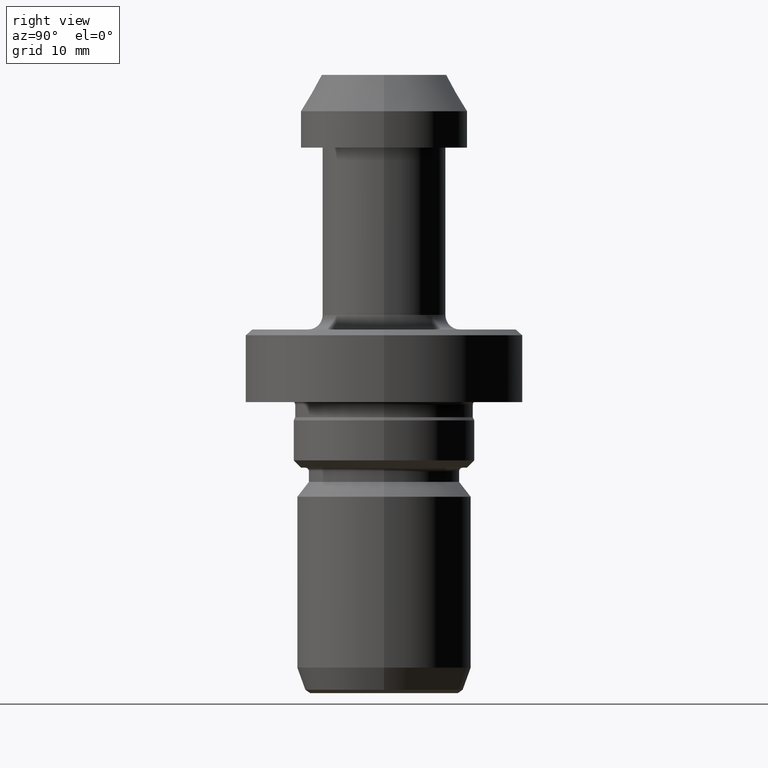
[diagram: clean part render]
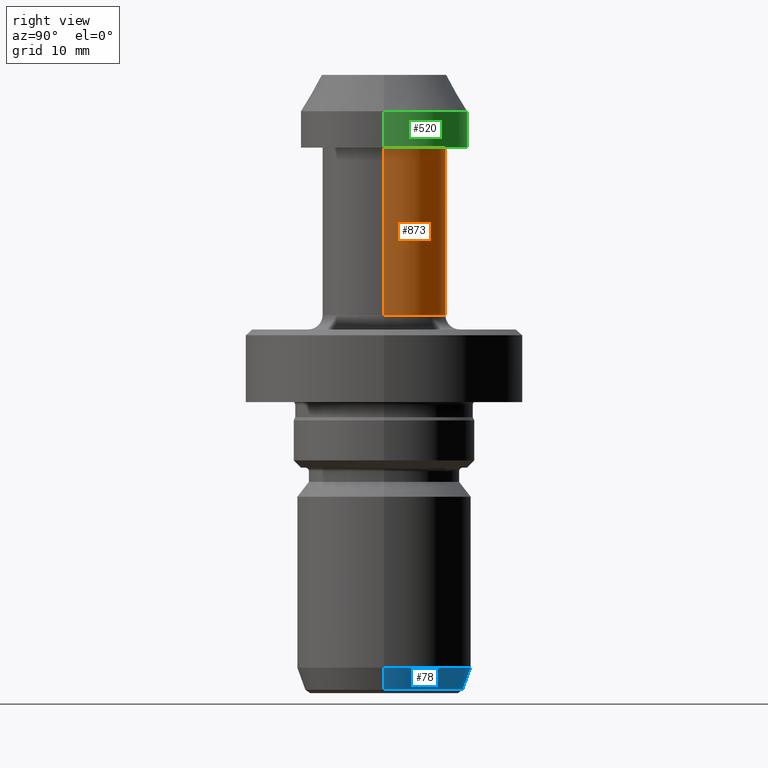
[diagram: same view with three faces highlighted in distinct colors, each labeled with its STEP entity id]
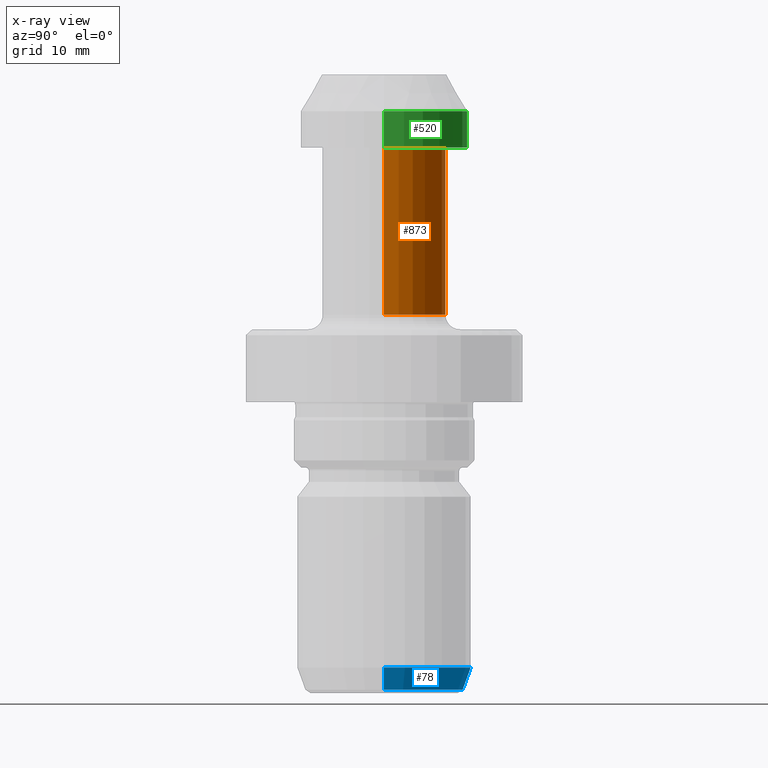
[diagram: x-ray of the same camera — body ghosted, the three highlighted faces saturated]
A machine part, right view with three faces highlighted in distinct colors.
The next image is the same camera in x-ray (body ghosted, the three faces saturated) — at least one of them is partly hidden behind the body in this view.
Their STEP definitions:

[orange] entity #873 — the highlighted cylindrical surface (partial cylindrical patch) has radius 8.5 mm, axis along (-0, -0, 1).
#37 = EDGE_CURVE ( 'NONE', #766, #458, #894, .T. ) ;
#75 = CARTESIAN_POINT ( 'NONE',  ( 0.0000000000000000000, 0.0000000000000000000, 0.0000000000000000000 ) ) ;
#82 = DIRECTION ( 'NONE',  ( 1.000000000000000000, 0.0000000000000000000, 0.0000000000000000000 ) ) ;
#113 = CARTESIAN_POINT ( 'NONE',  ( 8.500000000000000000, 0.0000000000000000000, 0.0000000000000000000 ) ) ;
#159 = DIRECTION ( 'NONE',  ( 1.000000000000000000, 0.0000000000000000000, 0.0000000000000000000 ) ) ;
#202 = EDGE_CURVE ( 'NONE', #718, #458, #733, .T. ) ;
#230 = CARTESIAN_POINT ( 'NONE',  ( 8.500000000000000000, 0.0000000000000000000, -10.00000000000000200 ) ) ;
#244 = ORIENTED_EDGE ( 'NONE', *, *, #512, .T. ) ;
#279 = ORIENTED_EDGE ( 'NONE', *, *, #202, .T. ) ;
#291 = DIRECTION ( 'NONE',  ( -0.0000000000000000000, -0.0000000000000000000, 1.000000000000000000 ) ) ;
#326 = CARTESIAN_POINT ( 'NONE',  ( -8.500000000000000000, 1.040949779275250100E-015, -10.00000000000000200 ) ) ;
#338 = VECTOR ( 'NONE', #1079, 1000.000000000000000 ) ;
#366 = FACE_OUTER_BOUND ( 'NONE', #622, .T. ) ;
#458 = VERTEX_POINT ( 'NONE', #326 ) ;
#496 = ORIENTED_EDGE ( 'NONE', *, *, #37, .F. ) ;
#512 = EDGE_CURVE ( 'NONE', #975, #718, #968, .T. ) ;
#600 = CARTESIAN_POINT ( 'NONE',  ( -8.500000000000001800, 1.163414459189985900E-015, -32.99999999999998600 ) ) ;
#622 = EDGE_LOOP ( 'NONE', ( #244, #279, #496, #747 ) ) ;
#627 = DIRECTION ( 'NONE',  ( -0.0000000000000000000, -0.0000000000000000000, 1.000000000000000000 ) ) ;
#677 = AXIS2_PLACEMENT_3D ( 'NONE', #1133, #627, #82 ) ;
#690 = DIRECTION ( 'NONE',  ( -0.0000000000000000000, -0.0000000000000000000, 1.000000000000000000 ) ) ;
#704 = EDGE_CURVE ( 'NONE', #975, #766, #884, .T. ) ;
#718 = VERTEX_POINT ( 'NONE', #600 ) ;
#733 = LINE ( 'NONE', #907, #1026 ) ;
#747 = ORIENTED_EDGE ( 'NONE', *, *, #704, .F. ) ;
#766 = VERTEX_POINT ( 'NONE', #230 ) ;
#777 = CYLINDRICAL_SURFACE ( 'NONE', #806, 8.500000000000000000 ) ;
#806 = AXIS2_PLACEMENT_3D ( 'NONE', #75, #690, #159 ) ;
#873 = ADVANCED_FACE ( 'NONE', ( #366 ), #777, .T. ) ;
#884 = LINE ( 'NONE', #113, #338 ) ;
#894 = CIRCLE ( 'NONE', #1143, 8.500000000000000000 ) ;
#902 = DIRECTION ( 'NONE',  ( 1.000000000000000000, 0.0000000000000000000, 0.0000000000000000000 ) ) ;
#907 = CARTESIAN_POINT ( 'NONE',  ( -8.500000000000000000, 1.040949779275250100E-015, 0.0000000000000000000 ) ) ;
#914 = CARTESIAN_POINT ( 'NONE',  ( 8.500000000000001800, 0.0000000000000000000, -32.99999999999998600 ) ) ;
#968 = CIRCLE ( 'NONE', #677, 8.500000000000001800 ) ;
#975 = VERTEX_POINT ( 'NONE', #914 ) ;
#1010 = DIRECTION ( 'NONE',  ( -0.0000000000000000000, -0.0000000000000000000, 1.000000000000000000 ) ) ;
#1026 = VECTOR ( 'NONE', #1010, 1000.000000000000000 ) ;
#1079 = DIRECTION ( 'NONE',  ( -0.0000000000000000000, -0.0000000000000000000, 1.000000000000000000 ) ) ;
#1092 = CARTESIAN_POINT ( 'NONE',  ( 0.0000000000000000000, 0.0000000000000000000, -10.00000000000000200 ) ) ;
#1133 = CARTESIAN_POINT ( 'NONE',  ( 0.0000000000000000000, 0.0000000000000000000, -32.99999999999998600 ) ) ;
#1143 = AXIS2_PLACEMENT_3D ( 'NONE', #1092, #291, #902 ) ;

[blue] entity #78 — the highlighted conical surface has half-angle 20 deg.
#4 = AXIS2_PLACEMENT_3D ( 'NONE', #604, #56, #682 ) ;
#6 = DIRECTION ( 'NONE',  ( -0.3420201433256695500, 4.188538737677001600E-017, 0.9396926207859082100 ) ) ;
#28 = DIRECTION ( 'NONE',  ( -0.0000000000000000000, -0.0000000000000000000, 1.000000000000000000 ) ) ;
#38 = VERTEX_POINT ( 'NONE', #117 ) ;
#42 = CARTESIAN_POINT ( 'NONE',  ( -10.89717019017340300, 1.334518459315981200E-015, -84.53000000000000100 ) ) ;
#56 = DIRECTION ( 'NONE',  ( -0.0000000000000000000, -0.0000000000000000000, 1.000000000000000000 ) ) ;
#78 = ADVANCED_FACE ( 'NONE', ( #630 ), #647, .T. ) ;
#117 = CARTESIAN_POINT ( 'NONE',  ( 12.00000000000000000, 0.0000000000000000000, -81.50000000000000000 ) ) ;
#118 = LINE ( 'NONE', #567, #1029 ) ;
#168 = CARTESIAN_POINT ( 'NONE',  ( 0.0000000000000000000, 0.0000000000000000000, -84.53000000000000100 ) ) ;
#188 = EDGE_CURVE ( 'NONE', #772, #38, #546, .T. ) ;
#200 = ORIENTED_EDGE ( 'NONE', *, *, #188, .F. ) ;
#224 = VERTEX_POINT ( 'NONE', #42 ) ;
#232 = CIRCLE ( 'NONE', #504, 12.00000000000000000 ) ;
#296 = EDGE_CURVE ( 'NONE', #772, #224, #1129, .T. ) ;
#301 = DIRECTION ( 'NONE',  ( 0.3420201433256695500, 0.0000000000000000000, 0.9396926207859082100 ) ) ;
#404 = EDGE_CURVE ( 'NONE', #224, #516, #118, .T. ) ;
#408 = ORIENTED_EDGE ( 'NONE', *, *, #404, .T. ) ;
#444 = CARTESIAN_POINT ( 'NONE',  ( 0.0000000000000000000, 0.0000000000000000000, -81.50000000000000000 ) ) ;
#490 = EDGE_CURVE ( 'NONE', #38, #516, #232, .T. ) ;
#504 = AXIS2_PLACEMENT_3D ( 'NONE', #444, #1045, #534 ) ;
#516 = VERTEX_POINT ( 'NONE', #788 ) ;
#534 = DIRECTION ( 'NONE',  ( 1.000000000000000000, 0.0000000000000000000, 0.0000000000000000000 ) ) ;
#546 = LINE ( 'NONE', #829, #963 ) ;
#567 = CARTESIAN_POINT ( 'NONE',  ( -10.89717019017340300, 1.334518459315981200E-015, -84.53000000000000100 ) ) ;
#604 = CARTESIAN_POINT ( 'NONE',  ( 0.0000000000000000000, 0.0000000000000000000, -84.53000000000000100 ) ) ;
#630 = FACE_OUTER_BOUND ( 'NONE', #1114, .T. ) ;
#647 = CONICAL_SURFACE ( 'NONE', #1024, 10.89717019017340300, 0.3490658503988667300 ) ;
#664 = DIRECTION ( 'NONE',  ( 1.000000000000000000, 0.0000000000000000000, 0.0000000000000000000 ) ) ;
#682 = DIRECTION ( 'NONE',  ( 1.000000000000000000, 0.0000000000000000000, 0.0000000000000000000 ) ) ;
#772 = VERTEX_POINT ( 'NONE', #850 ) ;
#788 = CARTESIAN_POINT ( 'NONE',  ( -12.00000000000000000, 1.469576158976823900E-015, -81.50000000000000000 ) ) ;
#829 = CARTESIAN_POINT ( 'NONE',  ( 10.89717019017340300, 0.0000000000000000000, -84.53000000000000100 ) ) ;
#850 = CARTESIAN_POINT ( 'NONE',  ( 10.89717019017340300, 0.0000000000000000000, -84.53000000000000100 ) ) ;
#896 = ORIENTED_EDGE ( 'NONE', *, *, #490, .F. ) ;
#963 = VECTOR ( 'NONE', #301, 999.9999999999998900 ) ;
#1024 = AXIS2_PLACEMENT_3D ( 'NONE', #168, #28, #664 ) ;
#1029 = VECTOR ( 'NONE', #6, 999.9999999999998900 ) ;
#1039 = ORIENTED_EDGE ( 'NONE', *, *, #296, .T. ) ;
#1045 = DIRECTION ( 'NONE',  ( -0.0000000000000000000, -0.0000000000000000000, 1.000000000000000000 ) ) ;
#1114 = EDGE_LOOP ( 'NONE', ( #1039, #408, #896, #200 ) ) ;
#1129 = CIRCLE ( 'NONE', #4, 10.89717019017340300 ) ;

[green] entity #520 — the highlighted cylindrical surface (partial cylindrical patch) has radius 11.5 mm, axis along (-0, -0, 1).
#71 = EDGE_CURVE ( 'NONE', #990, #216, #1080, .T. ) ;
#91 = EDGE_CURVE ( 'NONE', #510, #266, #162, .T. ) ;
#160 = ORIENTED_EDGE ( 'NONE', *, *, #71, .T. ) ;
#162 = LINE ( 'NONE', #857, #1074 ) ;
#164 = DIRECTION ( 'NONE',  ( -0.0000000000000000000, -0.0000000000000000000, 1.000000000000000000 ) ) ;
#216 = VERTEX_POINT ( 'NONE', #594 ) ;
#258 = FACE_OUTER_BOUND ( 'NONE', #1016, .T. ) ;
#266 = VERTEX_POINT ( 'NONE', #1060 ) ;
#299 = CIRCLE ( 'NONE', #732, 11.50000000000000000 ) ;
#300 = DIRECTION ( 'NONE',  ( -0.0000000000000000000, -0.0000000000000000000, 1.000000000000000000 ) ) ;
#333 = DIRECTION ( 'NONE',  ( -0.0000000000000000000, -0.0000000000000000000, 1.000000000000000000 ) ) ;
#345 = DIRECTION ( 'NONE',  ( 1.000000000000000000, 0.0000000000000000000, 0.0000000000000000000 ) ) ;
#414 = EDGE_CURVE ( 'NONE', #266, #216, #575, .T. ) ;
#432 = ORIENTED_EDGE ( 'NONE', *, *, #91, .F. ) ;
#436 = CARTESIAN_POINT ( 'NONE',  ( -11.50000000000000000, 1.408343819019456200E-015, -9.999999999999998200 ) ) ;
#497 = ORIENTED_EDGE ( 'NONE', *, *, #414, .F. ) ;
#510 = VERTEX_POINT ( 'NONE', #1127 ) ;
#520 = ADVANCED_FACE ( 'NONE', ( #258 ), #1119, .T. ) ;
#538 = CARTESIAN_POINT ( 'NONE',  ( 0.0000000000000000000, 0.0000000000000000000, 0.0000000000000000000 ) ) ;
#575 = CIRCLE ( 'NONE', #607, 11.50000000000000000 ) ;
#594 = CARTESIAN_POINT ( 'NONE',  ( -11.50000000000000000, 1.408343819019456200E-015, -4.999999999999999100 ) ) ;
#607 = AXIS2_PLACEMENT_3D ( 'NONE', #699, #164, #792 ) ;
#668 = CARTESIAN_POINT ( 'NONE',  ( -11.50000000000000000, 1.408343819019456200E-015, 0.0000000000000000000 ) ) ;
#699 = CARTESIAN_POINT ( 'NONE',  ( 0.0000000000000000000, 0.0000000000000000000, -4.999999999999999100 ) ) ;
#701 = DIRECTION ( 'NONE',  ( -0.0000000000000000000, -0.0000000000000000000, 1.000000000000000000 ) ) ;
#732 = AXIS2_PLACEMENT_3D ( 'NONE', #828, #300, #906 ) ;
#757 = DIRECTION ( 'NONE',  ( -0.0000000000000000000, -0.0000000000000000000, 1.000000000000000000 ) ) ;
#792 = DIRECTION ( 'NONE',  ( 1.000000000000000000, 0.0000000000000000000, 0.0000000000000000000 ) ) ;
#828 = CARTESIAN_POINT ( 'NONE',  ( 0.0000000000000000000, 0.0000000000000000000, -9.999999999999998200 ) ) ;
#844 = VECTOR ( 'NONE', #757, 1000.000000000000000 ) ;
#857 = CARTESIAN_POINT ( 'NONE',  ( 11.50000000000000000, 0.0000000000000000000, 0.0000000000000000000 ) ) ;
#906 = DIRECTION ( 'NONE',  ( 1.000000000000000000, 0.0000000000000000000, 0.0000000000000000000 ) ) ;
#929 = ORIENTED_EDGE ( 'NONE', *, *, #936, .T. ) ;
#936 = EDGE_CURVE ( 'NONE', #510, #990, #299, .T. ) ;
#990 = VERTEX_POINT ( 'NONE', #436 ) ;
#1016 = EDGE_LOOP ( 'NONE', ( #929, #160, #497, #432 ) ) ;
#1060 = CARTESIAN_POINT ( 'NONE',  ( 11.50000000000000000, 0.0000000000000000000, -4.999999999999999100 ) ) ;
#1068 = AXIS2_PLACEMENT_3D ( 'NONE', #538, #701, #345 ) ;
#1074 = VECTOR ( 'NONE', #333, 1000.000000000000000 ) ;
#1080 = LINE ( 'NONE', #668, #844 ) ;
#1119 = CYLINDRICAL_SURFACE ( 'NONE', #1068, 11.50000000000000000 ) ;
#1127 = CARTESIAN_POINT ( 'NONE',  ( 11.50000000000000000, 0.0000000000000000000, -9.999999999999998200 ) ) ;